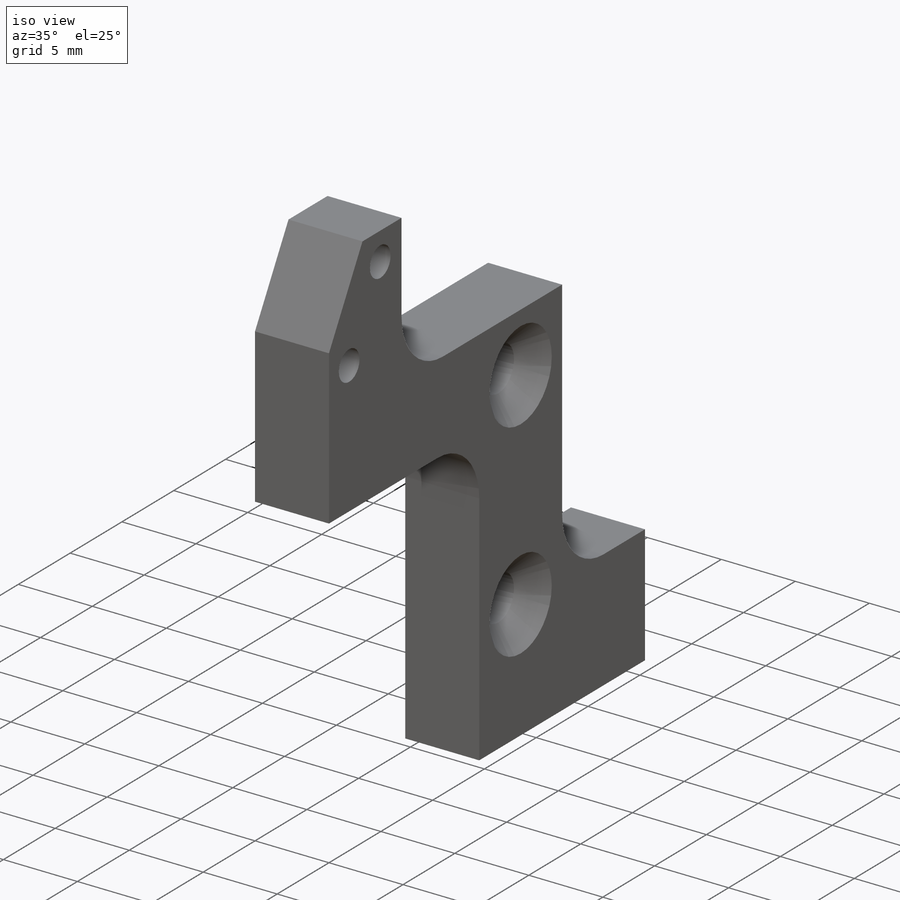
[diagram: iso view]
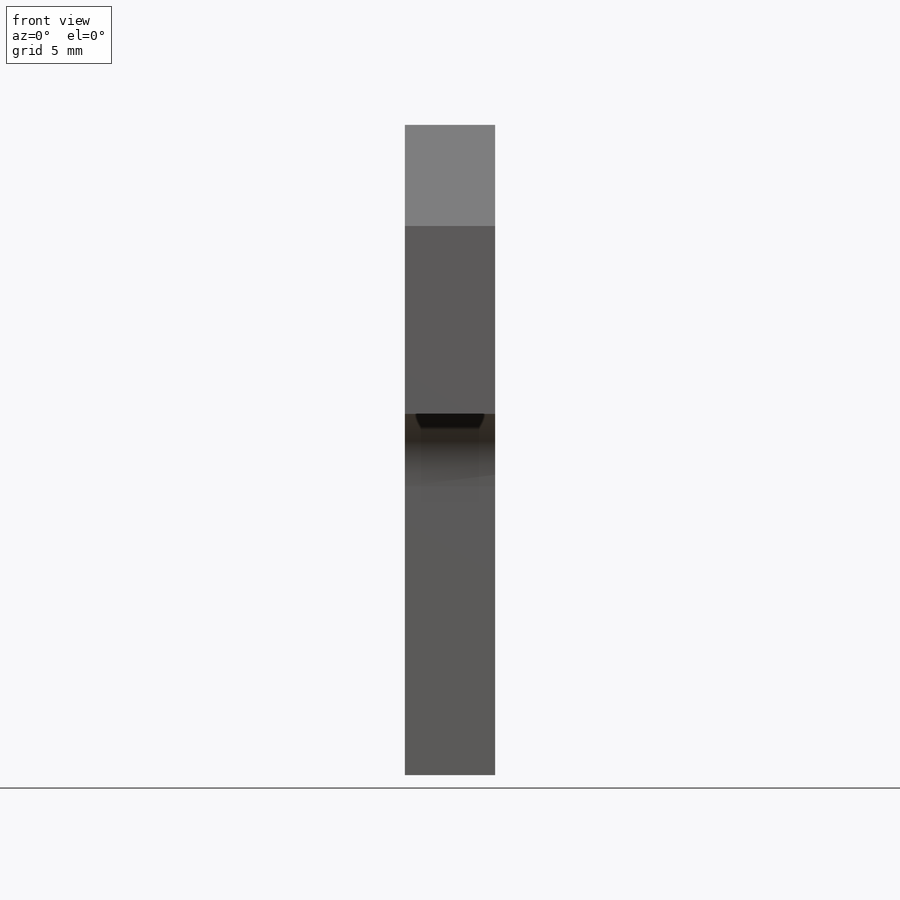
[diagram: front view]
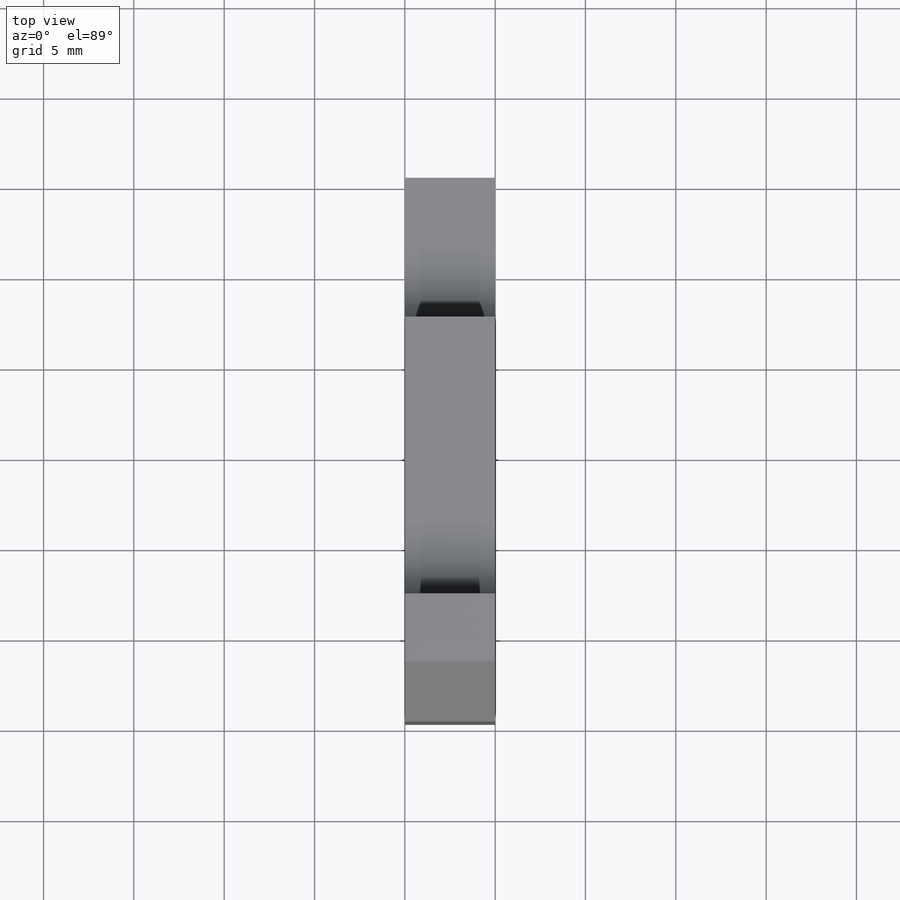
[diagram: top view]
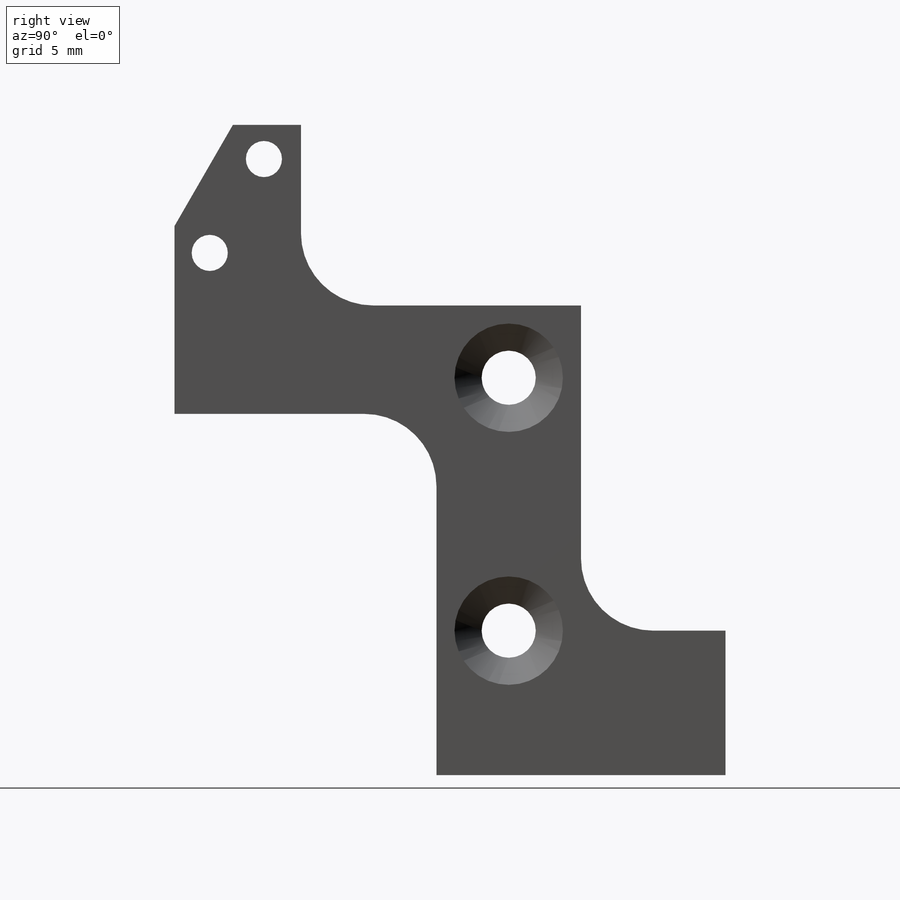
[diagram: right view]
SOLIDWORKS PART (.sldprt)
format: sldprt  version: not decoded by parser v0  size: 223,744 bytes
history: native  units: mm
features: sketch x3, material x1, extrude x1, fillet x1, hole x1, chamfer x1 (+11 scaffold rows collapsed)
feature tree (19):
  scaffold x11  (default folders/planes/origin — collapsed)
  material  "Material <not specified>"
  sketch  "Sketch1"  dims[c1.D3=3.0mm c1.D4=2.0mm c1.D1=8.0mm c1.D2=14.5mm c1.D5=16.0mm c1.D6=12.0mm c1.D7=14.0mm c1.D8=8.0mm c1.D9=20.0mm c1.D10=~5.783685mm c2.D10=~145.336554deg c3.D10=~8.364099mm c4.D10=120.0deg c4.D11=5.6mm c4.D12=6.0mm c4.D13=1.95mm c4.D14=7.09mm c4.D15=7.0mm c4.D16=10.0mm c4.D17=36.0mm]
  extrude  "Boss-Extrude1"  Depth=5mm
  fillet  "Fillet1"  Radius=4mm
  hole  "Tap Drill for M3x0.5 Tap1"  Diameter=2.5mm Depth=4mm
  sketch  "Sketch3"  dims[D1=2.5mm D2=3.0mm D3=10.0mm]
  sketch  "Sketch2"  dims[hole-wizard template sketch: 49 standard entries collapsed; hole parameters kept: c15.Drill Angle=180.0deg]
  chamfer  "Chamfer1"  Distance=1.5mm Angle=45deg
decode coverage: 7 of 7 modeling features carry decoded parameters
note: ~ marks probable driven/reference dimensions
note: suppression state not decoded; provenance and decode notes live in map.json
